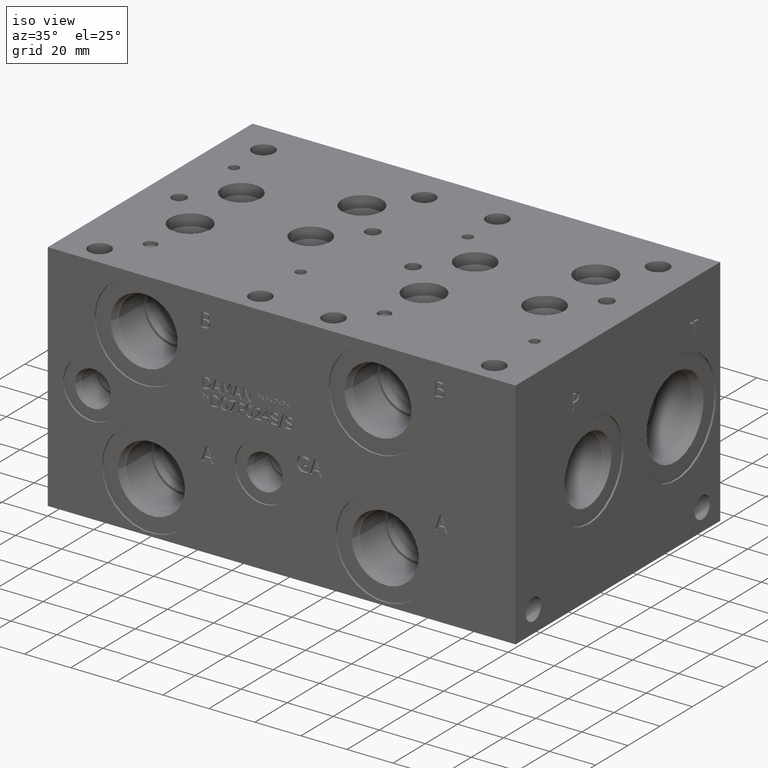
[diagram: clean part render]
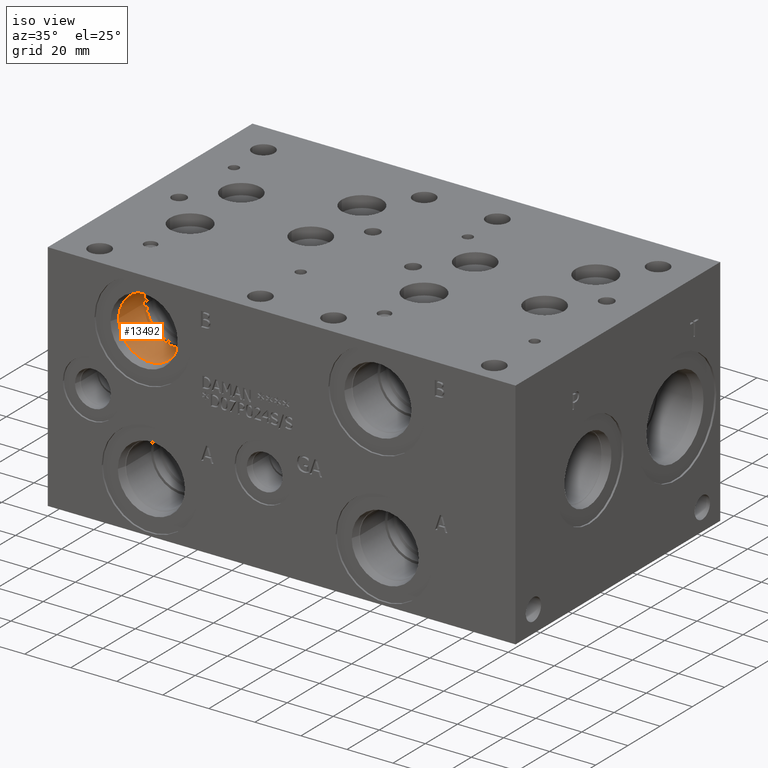
[diagram: same view with one face highlighted and labeled with its STEP entity id]
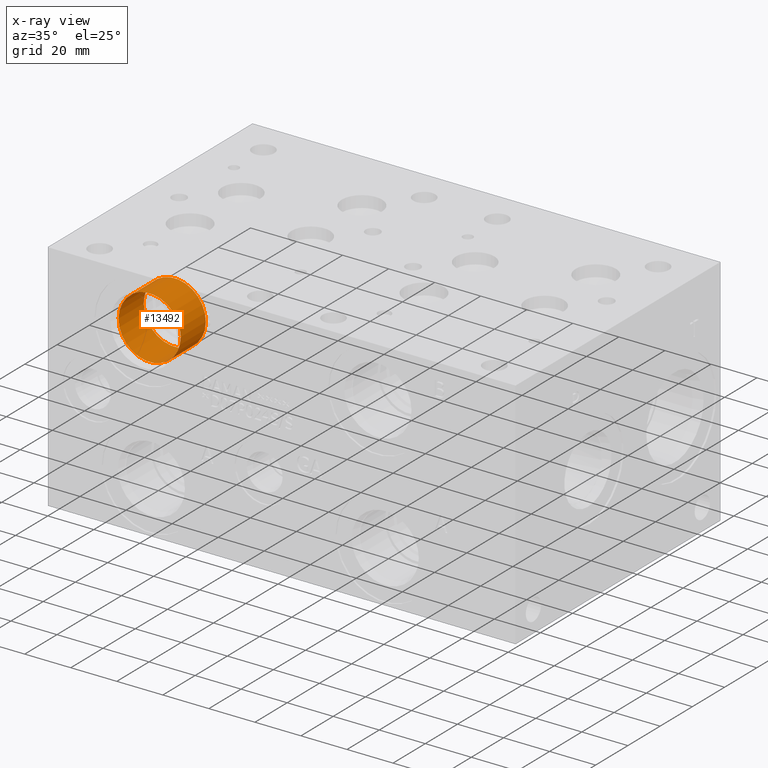
[diagram: x-ray of the same camera — body ghosted, the highlighted face saturated]
A machine part, iso view. The second image highlights one B-rep face of the part: STEP entity #13492.
The next image is the same camera in x-ray: the body ghosted, the highlighted face saturated — about 0% of this face is hidden behind the body in this view.
In plain terms, the highlighted cylindrical surface (bore or boss wall) has radius 13.495 mm, axis along (0, -1, 0).
Its self-contained STEP definition (entity closure, byte-faithful):
#148=CYLINDRICAL_SURFACE('',#14295,13.495);
#422=CIRCLE('',#14292,13.495);
#423=CIRCLE('',#14293,13.495);
#425=CIRCLE('',#14296,13.495);
#1696=FACE_OUTER_BOUND('',#2487,.T.);
#2487=EDGE_LOOP('',(#11767,#11768,#11769,#11770,#11771));
#3743=LINE('',#22959,#4940);
#4940=VECTOR('',#17062,13.495);
#6436=VERTEX_POINT('',#22950);
#6437=VERTEX_POINT('',#22951);
#6439=VERTEX_POINT('',#22957);
#8269=EDGE_CURVE('',#6436,#6437,#422,.T.);
#8270=EDGE_CURVE('',#6437,#6436,#423,.T.);
#8272=EDGE_CURVE('',#6439,#6439,#425,.T.);
#8273=EDGE_CURVE('',#6439,#6437,#3743,.T.);
#11767=ORIENTED_EDGE('',*,*,#8272,.F.);
#11768=ORIENTED_EDGE('',*,*,#8273,.T.);
#11769=ORIENTED_EDGE('',*,*,#8269,.F.);
#11770=ORIENTED_EDGE('',*,*,#8270,.F.);
#11771=ORIENTED_EDGE('',*,*,#8273,.F.);
#13492=ADVANCED_FACE('',(#1696),#148,.F.);
#14292=AXIS2_PLACEMENT_3D('',#22952,#17052,#17053);
#14293=AXIS2_PLACEMENT_3D('',#22953,#17054,#17055);
#14295=AXIS2_PLACEMENT_3D('',#22956,#17058,#17059);
#14296=AXIS2_PLACEMENT_3D('',#22958,#17060,#17061);
#17052=DIRECTION('center_axis',(0.,-1.,0.));
#17053=DIRECTION('ref_axis',(1.,0.,0.));
#17054=DIRECTION('center_axis',(0.,-1.,0.));
#17055=DIRECTION('ref_axis',(1.,0.,0.));
#17058=DIRECTION('center_axis',(0.,-1.,0.));
#17059=DIRECTION('ref_axis',(1.,0.,0.));
#17060=DIRECTION('center_axis',(0.,1.,0.));
#17061=DIRECTION('ref_axis',(1.,0.,0.));
#17062=DIRECTION('',(0.,1.,0.));
#22950=CARTESIAN_POINT('',(54.77,19.8374,79.375));
#22951=CARTESIAN_POINT('',(27.78,19.8374,79.375));
#22952=CARTESIAN_POINT('Origin',(41.275,19.8374,79.375));
#22953=CARTESIAN_POINT('Origin',(41.275,19.8374,79.375));
#22956=CARTESIAN_POINT('Origin',(41.275,9.9187,79.375));
#22957=CARTESIAN_POINT('',(27.78,4.285,79.375));
#22958=CARTESIAN_POINT('Origin',(41.275,4.285,79.375));
#22959=CARTESIAN_POINT('',(27.78,9.9187,79.375));